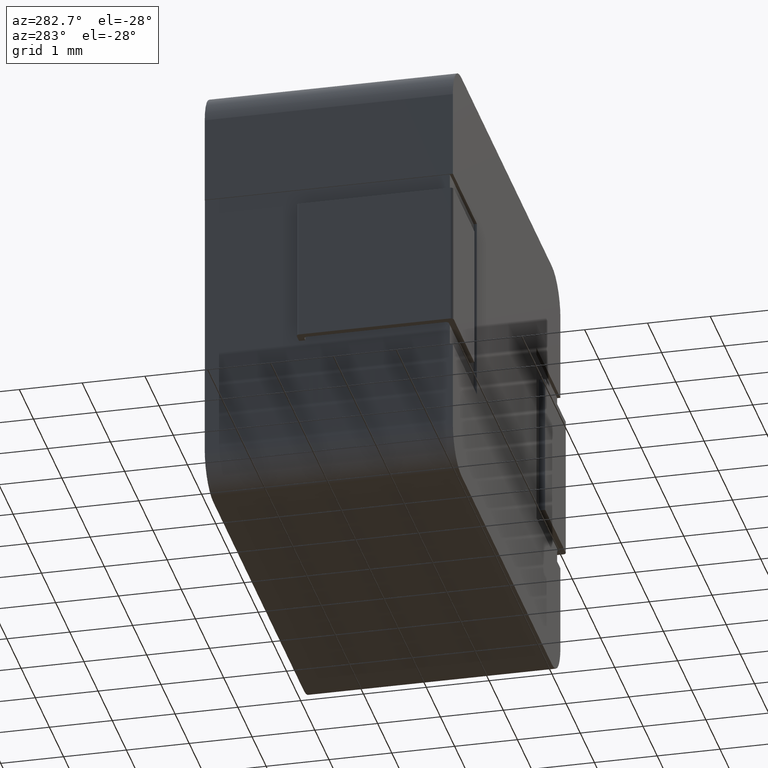
[diagram: clean part render]
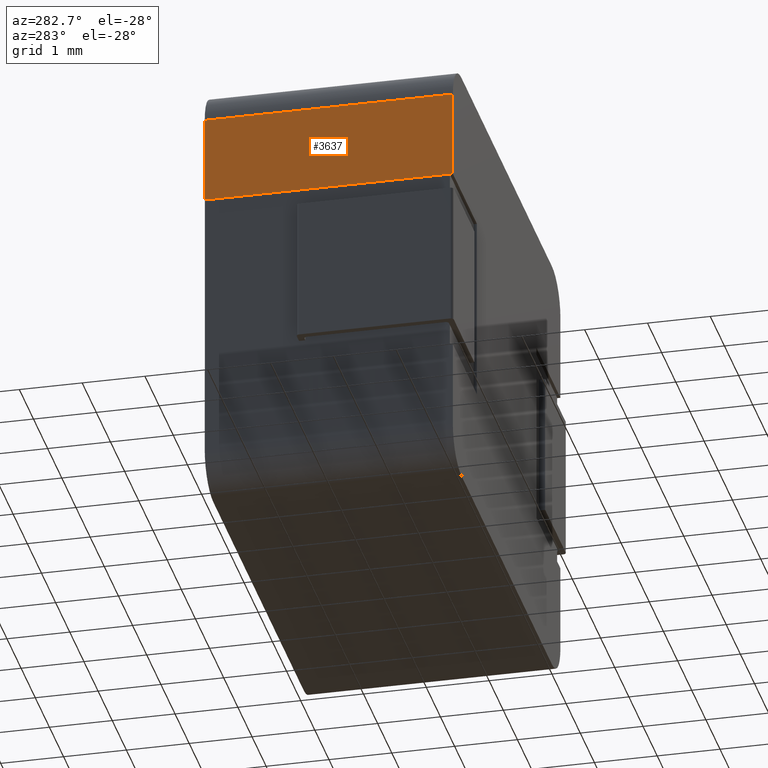
[diagram: same view with one face highlighted and labeled with its STEP entity id]
A machine part, auxiliary view. The second image highlights one B-rep face of the part: STEP entity #3637.
In plain terms, the highlighted planar face has unit normal (-1, 0, 0).
Its self-contained STEP definition (entity closure, byte-faithful):
#67 = VECTOR ( 'NONE', #3158, 1000.000000000000000 ) ;
#91 = VERTEX_POINT ( 'NONE', #3300 ) ;
#110 = CARTESIAN_POINT ( 'NONE',  ( 0.0000000000000000000, 0.0000000000000000000, -2.000000000000000400 ) ) ;
#290 = VECTOR ( 'NONE', #3263, 1000.000000000000000 ) ;
#395 = PLANE ( 'NONE',  #2692 ) ;
#441 = DIRECTION ( 'NONE',  ( 0.0000000000000000000, 0.0000000000000000000, -1.000000000000000000 ) ) ;
#806 = DIRECTION ( 'NONE',  ( -0.0000000000000000000, 1.000000000000000000, -0.0000000000000000000 ) ) ;
#1005 = CARTESIAN_POINT ( 'NONE',  ( 0.0000000000000000000, 3.950000000000000200, 0.0000000000000000000 ) ) ;
#1027 = EDGE_CURVE ( 'NONE', #3721, #2407, #2976, .T. ) ;
#1337 = CARTESIAN_POINT ( 'NONE',  ( 0.0000000000000000000, 3.950000000000000200, 0.0000000000000000000 ) ) ;
#1390 = CARTESIAN_POINT ( 'NONE',  ( 0.0000000000000000000, 0.0000000000000000000, 0.0000000000000000000 ) ) ;
#1397 = DIRECTION ( 'NONE',  ( 0.0000000000000000000, 0.0000000000000000000, 1.000000000000000000 ) ) ;
#1434 = CARTESIAN_POINT ( 'NONE',  ( 0.0000000000000000000, 3.950000000000000200, -0.5998999999999999900 ) ) ;
#1673 = VERTEX_POINT ( 'NONE', #110 ) ;
#1700 = EDGE_CURVE ( 'NONE', #91, #1673, #1713, .T. ) ;
#1713 = LINE ( 'NONE', #1390, #2707 ) ;
#1984 = EDGE_CURVE ( 'NONE', #2407, #1673, #2399, .T. ) ;
#2336 = FACE_OUTER_BOUND ( 'NONE', #3793, .T. ) ;
#2399 = LINE ( 'NONE', #3174, #67 ) ;
#2404 = ORIENTED_EDGE ( 'NONE', *, *, #1984, .T. ) ;
#2407 = VERTEX_POINT ( 'NONE', #2450 ) ;
#2450 = CARTESIAN_POINT ( 'NONE',  ( 0.0000000000000000000, 3.950000000000000200, -2.000000000000000000 ) ) ;
#2578 = ORIENTED_EDGE ( 'NONE', *, *, #1027, .T. ) ;
#2629 = DIRECTION ( 'NONE',  ( -1.000000000000000000, 0.0000000000000000000, 0.0000000000000000000 ) ) ;
#2632 = ORIENTED_EDGE ( 'NONE', *, *, #1700, .F. ) ;
#2692 = AXIS2_PLACEMENT_3D ( 'NONE', #1005, #2629, #1397 ) ;
#2707 = VECTOR ( 'NONE', #441, 1000.000000000000000 ) ;
#2976 = LINE ( 'NONE', #1337, #290 ) ;
#2978 = ORIENTED_EDGE ( 'NONE', *, *, #3722, .T. ) ;
#3095 = VECTOR ( 'NONE', #806, 1000.000000000000000 ) ;
#3158 = DIRECTION ( 'NONE',  ( -0.0000000000000000000, -1.000000000000000000, -0.0000000000000000000 ) ) ;
#3174 = CARTESIAN_POINT ( 'NONE',  ( 0.0000000000000000000, 0.05000000000000000300, -2.000000000000000400 ) ) ;
#3263 = DIRECTION ( 'NONE',  ( 0.0000000000000000000, 0.0000000000000000000, -1.000000000000000000 ) ) ;
#3300 = CARTESIAN_POINT ( 'NONE',  ( 0.0000000000000000000, 0.0000000000000000000, -0.5998999999999999900 ) ) ;
#3509 = LINE ( 'NONE', #3997, #3095 ) ;
#3637 = ADVANCED_FACE ( 'NONE', ( #2336 ), #395, .T. ) ;
#3721 = VERTEX_POINT ( 'NONE', #1434 ) ;
#3722 = EDGE_CURVE ( 'NONE', #91, #3721, #3509, .T. ) ;
#3793 = EDGE_LOOP ( 'NONE', ( #2578, #2404, #2632, #2978 ) ) ;
#3997 = CARTESIAN_POINT ( 'NONE',  ( 0.0000000000000000000, 3.950000000000000200, -0.5998999999999999900 ) ) ;